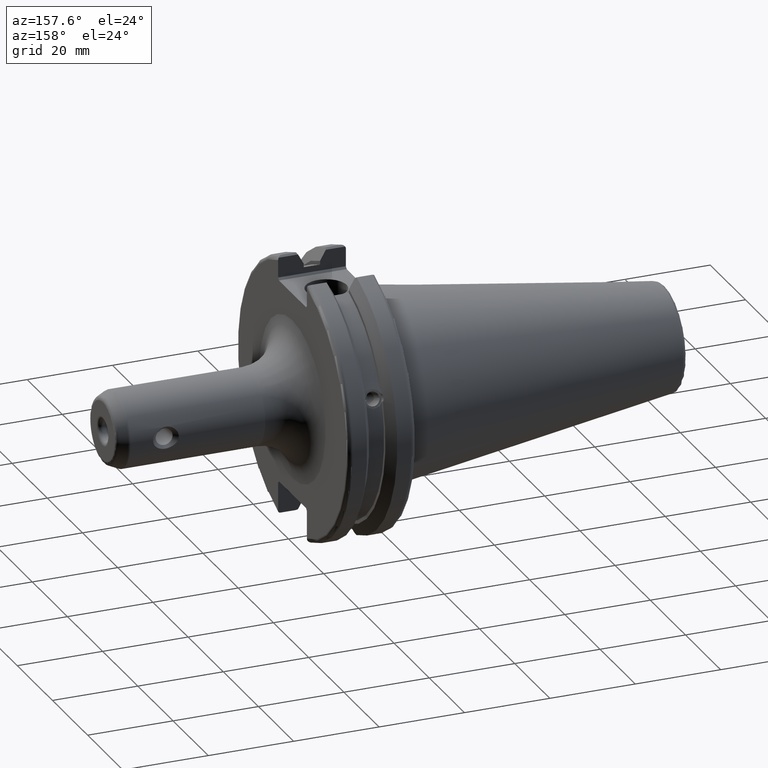
[diagram: clean part render]
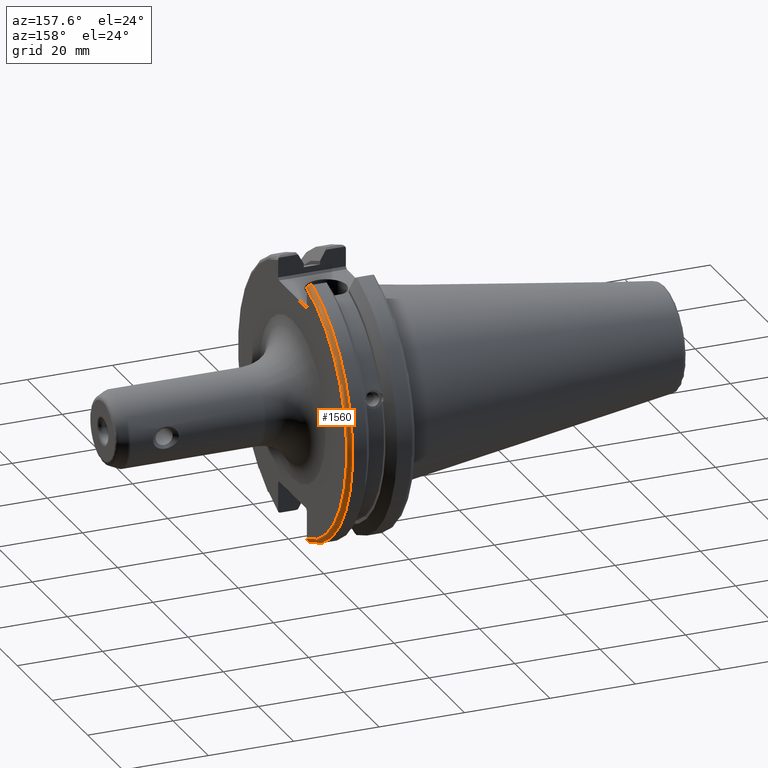
[diagram: same view with one face highlighted and labeled with its STEP entity id]
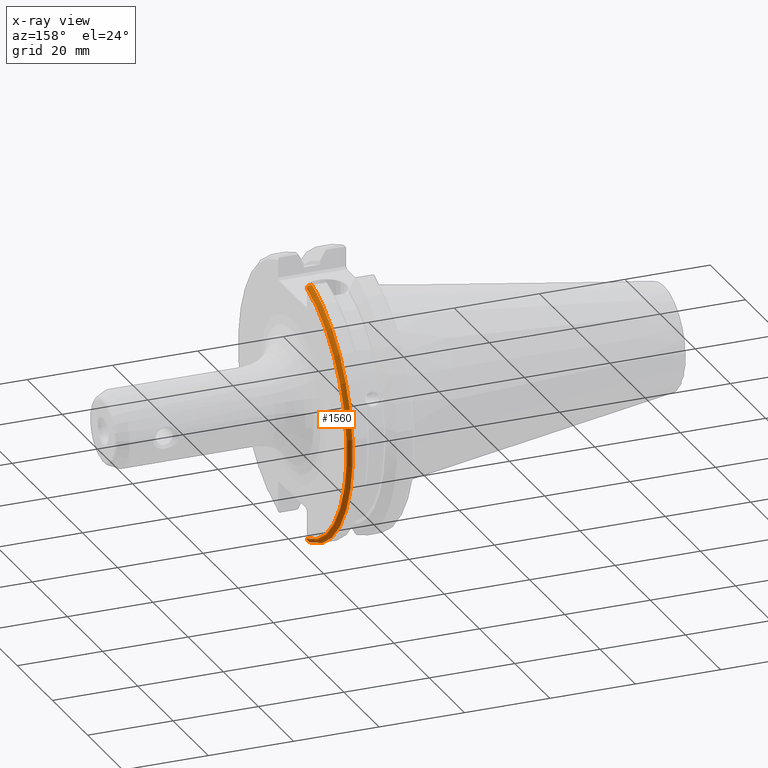
[diagram: x-ray of the same camera — body ghosted, the highlighted face saturated]
A machine part, auxiliary view. The second image highlights one B-rep face of the part: STEP entity #1560.
The next image is the same camera in x-ray: the body ghosted, the highlighted face saturated — about 0% of this face is hidden behind the body in this view.
In plain terms, the highlighted toroidal blend (fillet) surface has major radius 30.75 mm and minor (blend) radius 1 mm.
Its self-contained STEP definition (entity closure, byte-faithful):
#81=B_SPLINE_CURVE_WITH_KNOTS('',3,(#2859,#2860,#2861,#2862,#2863,#2864),
 .UNSPECIFIED.,.F.,.F.,(4,2,4),(0.0977210450333169,0.111963554372601,0.150804064902975),
 .UNSPECIFIED.);
#82=B_SPLINE_CURVE_WITH_KNOTS('',3,(#2866,#2867,#2868,#2869,#2870,#2871),
 .UNSPECIFIED.,.F.,.F.,(4,2,4),(0.452741154494497,0.491581665024871,0.505824174364157),
 .UNSPECIFIED.);
#83=B_SPLINE_CURVE_WITH_KNOTS('',3,(#2873,#2874,#2875,#2876,#2877,#2878,
#2879,#2880),.UNSPECIFIED.,.F.,.F.,(4,2,2,4),(-0.104302157163828,-0.0778717450894463,
-0.0364423539742873,0.),.UNSPECIFIED.);
#84=B_SPLINE_CURVE_WITH_KNOTS('',3,(#2883,#2884,#2885,#2886,#2887,#2888,
#2889,#2890),.UNSPECIFIED.,.F.,.F.,(4,2,2,4),(0.,0.0343524753874978,0.0729784742461449,
0.104180282751877),.UNSPECIFIED.);
#408=FACE_OUTER_BOUND('',#508,.T.);
#508=EDGE_LOOP('',(#1287,#1288,#1289,#1290,#1291,#1292));
#573=CIRCLE('',#1654,30.75);
#609=CIRCLE('',#1744,31.75);
#650=VERTEX_POINT('',#2400);
#651=VERTEX_POINT('',#2401);
#749=VERTEX_POINT('',#2858);
#750=VERTEX_POINT('',#2865);
#751=VERTEX_POINT('',#2872);
#752=VERTEX_POINT('',#2881);
#815=EDGE_CURVE('',#650,#651,#573,.T.);
#946=EDGE_CURVE('',#749,#650,#81,.T.);
#947=EDGE_CURVE('',#651,#750,#82,.T.);
#948=EDGE_CURVE('',#750,#751,#83,.T.);
#949=EDGE_CURVE('',#751,#752,#609,.T.);
#950=EDGE_CURVE('',#752,#749,#84,.T.);
#1287=ORIENTED_EDGE('',*,*,#946,.T.);
#1288=ORIENTED_EDGE('',*,*,#815,.T.);
#1289=ORIENTED_EDGE('',*,*,#947,.T.);
#1290=ORIENTED_EDGE('',*,*,#948,.T.);
#1291=ORIENTED_EDGE('',*,*,#949,.T.);
#1292=ORIENTED_EDGE('',*,*,#950,.T.);
#1511=TOROIDAL_SURFACE('',#1743,30.75,1.);
#1560=ADVANCED_FACE('',(#408),#1511,.T.);
#1654=AXIS2_PLACEMENT_3D('',#2402,#1869,#1870);
#1743=AXIS2_PLACEMENT_3D('',#2857,#2102,#2103);
#1744=AXIS2_PLACEMENT_3D('',#2882,#2104,#2105);
#1869=DIRECTION('center_axis',(-1.,0.,0.));
#1870=DIRECTION('ref_axis',(0.,1.,-6.12323399573677E-17));
#2102=DIRECTION('center_axis',(1.,0.,0.));
#2103=DIRECTION('ref_axis',(0.,0.,-1.));
#2104=DIRECTION('center_axis',(1.,0.,0.));
#2105=DIRECTION('ref_axis',(0.,1.,-6.12323399573677E-17));
#2400=CARTESIAN_POINT('',(19.05,8.19,29.6392712461019));
#2401=CARTESIAN_POINT('',(19.05,8.19,-29.6392712461019));
#2402=CARTESIAN_POINT('Origin',(19.05,0.,0.));
#2857=CARTESIAN_POINT('Origin',(18.05,0.,0.));
#2858=CARTESIAN_POINT('',(18.9058722749097,8.19,30.1755016258903));
#2859=CARTESIAN_POINT('Ctrl Pts',(18.9058722749097,8.19,30.1755016258903));
#2860=CARTESIAN_POINT('Ctrl Pts',(18.9318163728133,8.19,30.131014531546));
#2861=CARTESIAN_POINT('Ctrl Pts',(18.9539643471756,8.19,30.0852355256475));
#2862=CARTESIAN_POINT('Ctrl Pts',(19.020485567083,8.19,29.9212724384851));
#2863=CARTESIAN_POINT('Ctrl Pts',(19.05,8.19,29.7687396145364));
#2864=CARTESIAN_POINT('Ctrl Pts',(19.05,8.19,29.6392712461019));
#2865=CARTESIAN_POINT('',(18.9058722749097,8.19,-30.1755016258903));
#2866=CARTESIAN_POINT('Ctrl Pts',(19.05,8.19,-29.6392712461019));
#2867=CARTESIAN_POINT('Ctrl Pts',(19.05,8.19,-29.7687396145364));
#2868=CARTESIAN_POINT('Ctrl Pts',(19.0204855670831,8.19,-29.9212724384851));
#2869=CARTESIAN_POINT('Ctrl Pts',(18.9539643471756,8.19,-30.0852355256475));
#2870=CARTESIAN_POINT('Ctrl Pts',(18.9318163728133,8.19,-30.131014531546));
#2871=CARTESIAN_POINT('Ctrl Pts',(18.9058722749097,8.19,-30.1755016258903));
#2872=CARTESIAN_POINT('',(18.05,8.67204822802685,-30.5427254764662));
#2873=CARTESIAN_POINT('Ctrl Pts',(18.9058722749097,8.19,-30.1755016258903));
#2874=CARTESIAN_POINT('Ctrl Pts',(18.8644673620074,8.25871605728282,-30.2278494485451));
#2875=CARTESIAN_POINT('Ctrl Pts',(18.8119751533981,8.32529543089522,-30.2785695477496));
#2876=CARTESIAN_POINT('Ctrl Pts',(18.6711011886212,8.46607530335799,-30.3858155116254));
#2877=CARTESIAN_POINT('Ctrl Pts',(18.545044361706,8.551646780666,-30.4510037761381));
#2878=CARTESIAN_POINT('Ctrl Pts',(18.3129472218859,8.64410239894262,-30.5214363722497));
#2879=CARTESIAN_POINT('Ctrl Pts',(18.1714745132476,8.67204822802685,-30.5427254764662));
#2880=CARTESIAN_POINT('Ctrl Pts',(18.05,8.67204822802685,-30.5427254764662));
#2881=CARTESIAN_POINT('',(18.05,8.67204822802685,30.5427254764662));
#2882=CARTESIAN_POINT('Origin',(18.05,0.,0.));
#2883=CARTESIAN_POINT('Ctrl Pts',(18.05,8.67204822802685,30.5427254764662));
#2884=CARTESIAN_POINT('Ctrl Pts',(18.1645082512917,8.67204822802685,30.5427254764662));
#2885=CARTESIAN_POINT('Ctrl Pts',(18.2983170433775,8.6471881193939,30.5237870709558));
#2886=CARTESIAN_POINT('Ctrl Pts',(18.5184414294771,8.56482138642532,30.4610401774263));
#2887=CARTESIAN_POINT('Ctrl Pts',(18.6396724190507,8.48862804755883,30.4029961692546));
#2888=CARTESIAN_POINT('Ctrl Pts',(18.7926702662319,8.34909446036477,30.2966996242308));
#2889=CARTESIAN_POINT('Ctrl Pts',(18.8574463042989,8.27036828330781,30.2367261024977));
#2890=CARTESIAN_POINT('Ctrl Pts',(18.9058722749097,8.19,30.1755016258903));